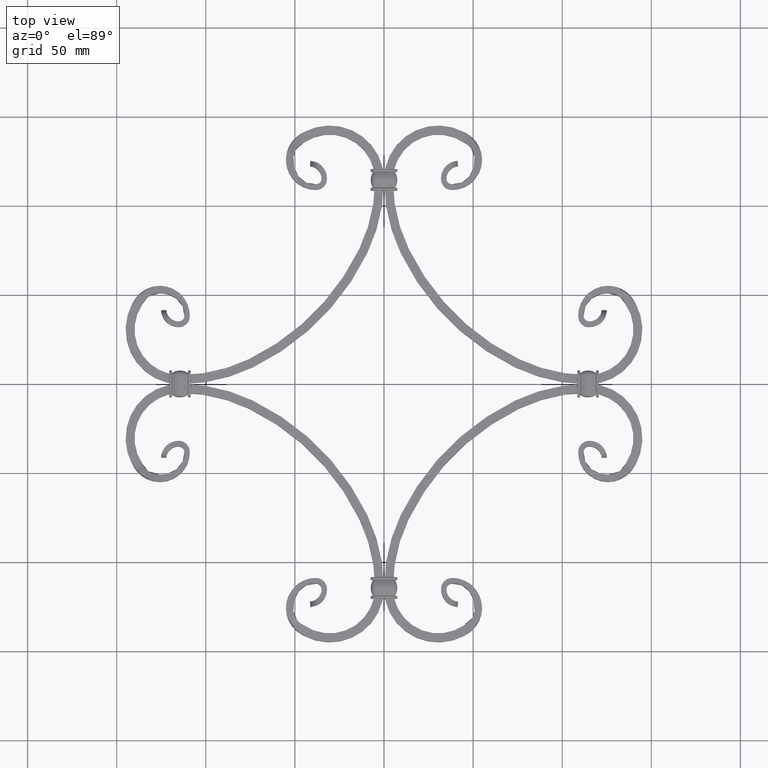
[diagram: clean part render]
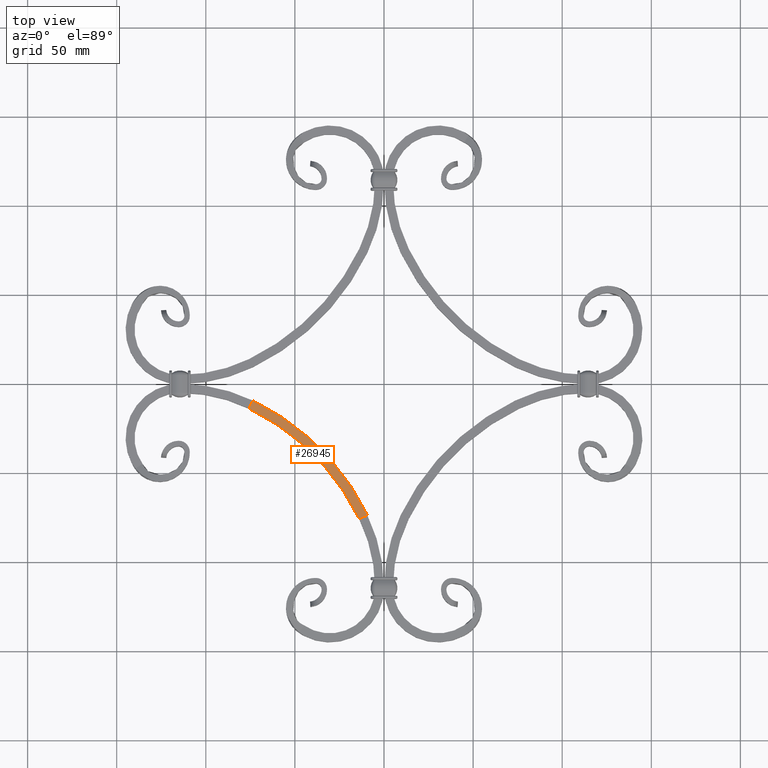
[diagram: same view with one face highlighted and labeled with its STEP entity id]
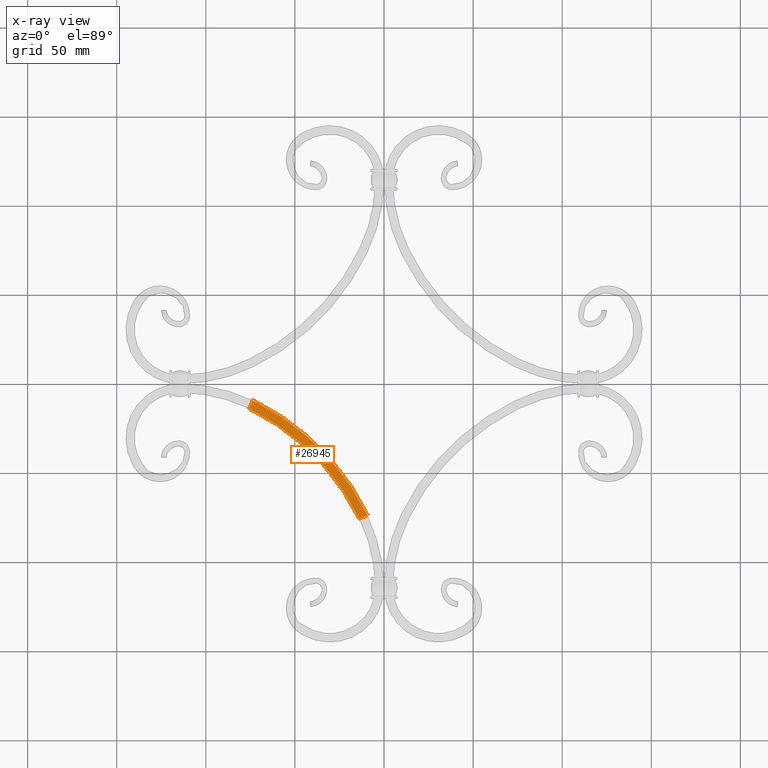
[diagram: x-ray of the same camera — body ghosted, the highlighted face saturated]
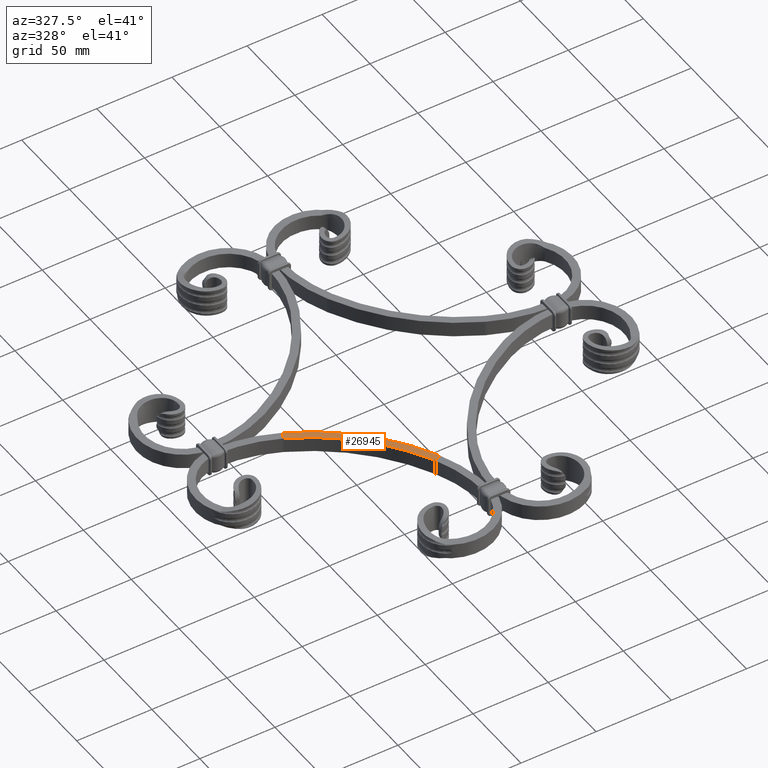
[diagram: same view with one face highlighted and labeled with its STEP entity id]
A machine part, top view. The second image highlights one B-rep face of the part: STEP entity #26945.
The next image is the same camera in x-ray: the body ghosted, the highlighted face saturated — about 0% of this face is hidden behind the body in this view.
A second angle (auxiliary view) of the same face is appended — the face is thin or edge-on in the first view.
In plain terms, the highlighted planar face has unit normal (-0, 0, -1).
Its self-contained STEP definition (entity closure, byte-faithful):
#1498 = DIRECTION ( 'NONE',  ( 0.000000000000000000, 0.000000000000000000, 1.000000000000000000 ) ) ;
#1798 = VERTEX_POINT ( 'NONE', #35513 ) ;
#1834 = CARTESIAN_POINT ( 'NONE',  ( -13.88247173995935135, -75.77249486318585525, 5.000000000000000000 ) ) ;
#2287 = DIRECTION ( 'NONE',  ( 0.9001969467420303239, 0.4354830158299245468, 0.000000000000000000 ) ) ;
#3301 = VERTEX_POINT ( 'NONE', #22498 ) ;
#6585 = LINE ( 'NONE', #26931, #20635 ) ;
#8753 = LINE ( 'NONE', #29465, #42497 ) ;
#9183 = EDGE_LOOP ( 'NONE', ( #26408, #10340, #19301, #32718 ) ) ;
#9357 = DIRECTION ( 'NONE',  ( 0.000000000000000000, 0.000000000000000000, 1.000000000000000000 ) ) ;
#10340 = ORIENTED_EDGE ( 'NONE', *, *, #13588, .F. ) ;
#13588 = EDGE_CURVE ( 'NONE', #40295, #27368, #6585, .T. ) ;
#16074 = DIRECTION ( 'NONE',  ( 0.9001969467420302129, 0.4354830158299246579, 0.000000000000000000 ) ) ;
#16621 = AXIS2_PLACEMENT_3D ( 'NONE', #31936, #28442, #42951 ) ;
#16864 = CARTESIAN_POINT ( 'NONE',  ( -133.7695810847829989, -133.7695810847827147, 5.000000000000000000 ) ) ;
#19301 = ORIENTED_EDGE ( 'NONE', *, *, #33921, .T. ) ;
#20635 = VECTOR ( 'NONE', #34383, 1000.000000000000114 ) ;
#22498 = CARTESIAN_POINT ( 'NONE',  ( -73.59507978403630091, -9.381487006248601546, 5.000000000000000000 ) ) ;
#22665 = CARTESIAN_POINT ( 'NONE',  ( -9.381487006249189520, -73.59507978403622985, 5.000000000000000000 ) ) ;
#24641 = PLANE ( 'NONE',  #16621 ) ;
#25923 = AXIS2_PLACEMENT_3D ( 'NONE', #34080, #1498, #16074 ) ;
#26408 = ORIENTED_EDGE ( 'NONE', *, *, #44195, .F. ) ;
#26931 = CARTESIAN_POINT ( 'NONE',  ( -9.381487006249196625, -73.59507978403622985, 5.000000000000000000 ) ) ;
#26945 = ADVANCED_FACE ( 'NONE', ( #41442 ), #24641, .F. ) ;
#27368 = VERTEX_POINT ( 'NONE', #1834 ) ;
#27656 = CIRCLE ( 'NONE', #25923, 133.1787558030673040 ) ;
#27672 = EDGE_CURVE ( 'NONE', #3301, #1798, #8753, .T. ) ;
#28442 = DIRECTION ( 'NONE',  ( -0.000000000000000000, 0.000000000000000000, -1.000000000000000000 ) ) ;
#29465 = CARTESIAN_POINT ( 'NONE',  ( -73.59507978403630091, -9.381487006248608651, 5.000000000000000000 ) ) ;
#31616 = AXIS2_PLACEMENT_3D ( 'NONE', #16864, #9357, #2287 ) ;
#31936 = CARTESIAN_POINT ( 'NONE',  ( -9.381487006249196625, -73.59507978403625827, 5.000000000000000000 ) ) ;
#32718 = ORIENTED_EDGE ( 'NONE', *, *, #27672, .T. ) ;
#33097 = DIRECTION ( 'NONE',  ( -0.4354830158299308196, -0.9001969467420272153, 0.000000000000000000 ) ) ;
#33921 = EDGE_CURVE ( 'NONE', #40295, #3301, #42413, .T. ) ;
#34080 = CARTESIAN_POINT ( 'NONE',  ( -133.7695810847829989, -133.7695810847827147, 5.000000000000000000 ) ) ;
#34383 = DIRECTION ( 'NONE',  ( -0.9001969467420305460, -0.4354830158299238807, 0.000000000000000000 ) ) ;
#35513 = CARTESIAN_POINT ( 'NONE',  ( -75.77249486318596894, -13.88247173995874562, 5.000000000000000000 ) ) ;
#40295 = VERTEX_POINT ( 'NONE', #22665 ) ;
#41442 = FACE_OUTER_BOUND ( 'NONE', #9183, .T. ) ;
#42413 = CIRCLE ( 'NONE', #31616, 138.1787558030673324 ) ;
#42497 = VECTOR ( 'NONE', #33097, 1000.000000000000000 ) ;
#42951 = DIRECTION ( 'NONE',  ( -1.000000000000000000, 0.000000000000000000, 0.000000000000000000 ) ) ;
#44195 = EDGE_CURVE ( 'NONE', #27368, #1798, #27656, .T. ) ;